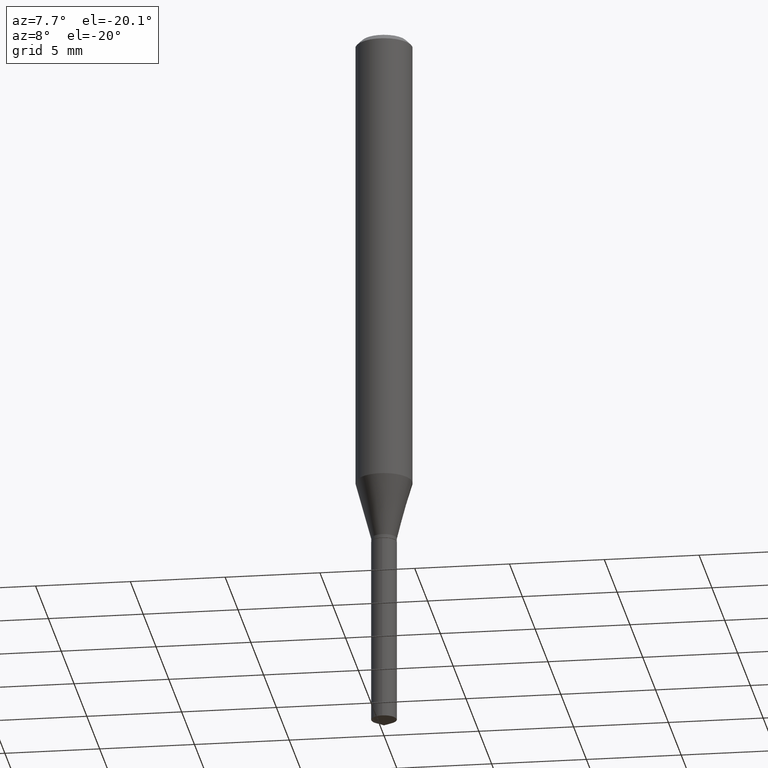
[diagram: clean part render]
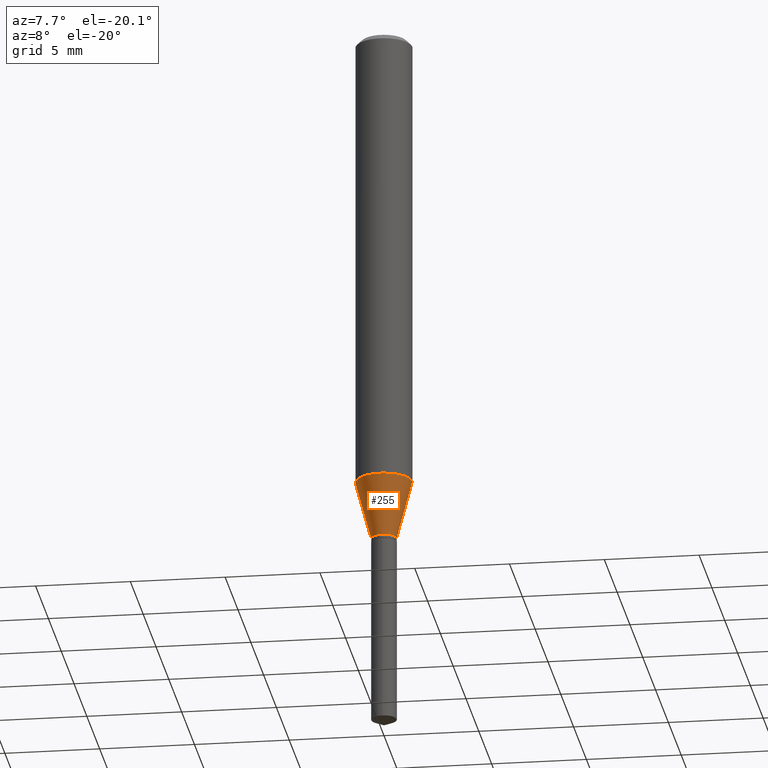
[diagram: same view with one face highlighted and labeled with its STEP entity id]
A machine part, auxiliary view. The second image highlights one B-rep face of the part: STEP entity #255.
In plain terms, the highlighted conical surface has half-angle 15 deg.
Its self-contained STEP definition (entity closure, byte-faithful):
#14 = AXIS2_PLACEMENT_3D ( 'NONE', #257, #40, #86 ) ;
#21 = CARTESIAN_POINT ( 'NONE',  ( -0.02639999999999999986, -3.606260340546295139E-15, -1.086600000000000010 ) ) ;
#32 = EDGE_LOOP ( 'NONE', ( #224, #208, #370, #435 ) ) ;
#40 = DIRECTION ( 'NONE',  ( -2.445468806185136597E-29, 3.491481338843145583E-15, 1.000000000000000000 ) ) ;
#45 = FACE_OUTER_BOUND ( 'NONE', #32, .T. ) ;
#48 = EDGE_CURVE ( 'NONE', #453, #419, #473, .T. ) ;
#49 = CARTESIAN_POINT ( 'NONE',  ( 2.657246404800769118E-29, -3.793843622786962228E-15, -1.086600000000000010 ) ) ;
#55 = CARTESIAN_POINT ( 'NONE',  ( 0.02639999999999999986, -3.978193837477879316E-15, -1.086600000000000010 ) ) ;
#64 = CONICAL_SURFACE ( 'NONE', #71, 0.02639999999999999986, 0.2617993877991500740 ) ;
#65 = CARTESIAN_POINT ( 'NONE',  ( 0.02639999999999999986, -3.978193837477879316E-15, -1.086600000000000010 ) ) ;
#71 = AXIS2_PLACEMENT_3D ( 'NONE', #49, #187, #345 ) ;
#73 = VERTEX_POINT ( 'NONE', #296 ) ;
#86 = DIRECTION ( 'NONE',  ( 1.000000000000000000, -6.982962677686269866E-15, 0.000000000000000000 ) ) ;
#95 = CARTESIAN_POINT ( 'NONE',  ( -0.05905000000000013016, -2.948826042575245259E-15, -0.9647485411328760030 ) ) ;
#117 = LINE ( 'NONE', #21, #266 ) ;
#157 = EDGE_CURVE ( 'NONE', #73, #443, #278, .T. ) ;
#163 = DIRECTION ( 'NONE',  ( 1.000000000000000000, -6.982962677686266711E-15, 0.000000000000000000 ) ) ;
#165 = DIRECTION ( 'NONE',  ( 0.2588190451025213501, 1.565188264969621968E-15, 0.9659258262890682012 ) ) ;
#171 = DIRECTION ( 'NONE',  ( -2.445468806185136597E-29, 3.491481338843145583E-15, 1.000000000000000000 ) ) ;
#187 = DIRECTION ( 'NONE',  ( -2.445468806185136597E-29, 3.491481338843145583E-15, 1.000000000000000000 ) ) ;
#200 = CARTESIAN_POINT ( 'NONE',  ( 2.359262463153066323E-29, -3.368401528041585540E-15, -0.9647485411328760030 ) ) ;
#208 = ORIENTED_EDGE ( 'NONE', *, *, #157, .T. ) ;
#224 = ORIENTED_EDGE ( 'NONE', *, *, #252, .F. ) ;
#228 = DIRECTION ( 'NONE',  ( -0.2588190451025213501, 5.211531920934551042E-15, 0.9659258262890682012 ) ) ;
#252 = EDGE_CURVE ( 'NONE', #73, #453, #117, .T. ) ;
#255 = ADVANCED_FACE ( 'NONE', ( #45 ), #64, .T. ) ;
#257 = CARTESIAN_POINT ( 'NONE',  ( 2.657246404800769118E-29, -3.793843622786962228E-15, -1.086600000000000010 ) ) ;
#266 = VECTOR ( 'NONE', #228, 39.37007874015747433 ) ;
#278 = CIRCLE ( 'NONE', #14, 0.02639999999999999986 ) ;
#296 = CARTESIAN_POINT ( 'NONE',  ( -0.02639999999999999986, -3.619178821500014265E-15, -1.086600000000000010 ) ) ;
#302 = AXIS2_PLACEMENT_3D ( 'NONE', #200, #171, #163 ) ;
#345 = DIRECTION ( 'NONE',  ( 1.000000000000000000, -6.982962677686269866E-15, 0.000000000000000000 ) ) ;
#352 = LINE ( 'NONE', #65, #359 ) ;
#359 = VECTOR ( 'NONE', #165, 39.37007874015747433 ) ;
#370 = ORIENTED_EDGE ( 'NONE', *, *, #441, .T. ) ;
#397 = CARTESIAN_POINT ( 'NONE',  ( 0.05905000000000013016, -3.780745474158960461E-15, -0.9647485411328760030 ) ) ;
#419 = VERTEX_POINT ( 'NONE', #397 ) ;
#435 = ORIENTED_EDGE ( 'NONE', *, *, #48, .F. ) ;
#441 = EDGE_CURVE ( 'NONE', #443, #419, #352, .T. ) ;
#443 = VERTEX_POINT ( 'NONE', #55 ) ;
#453 = VERTEX_POINT ( 'NONE', #95 ) ;
#473 = CIRCLE ( 'NONE', #302, 0.05905000000000011628 ) ;